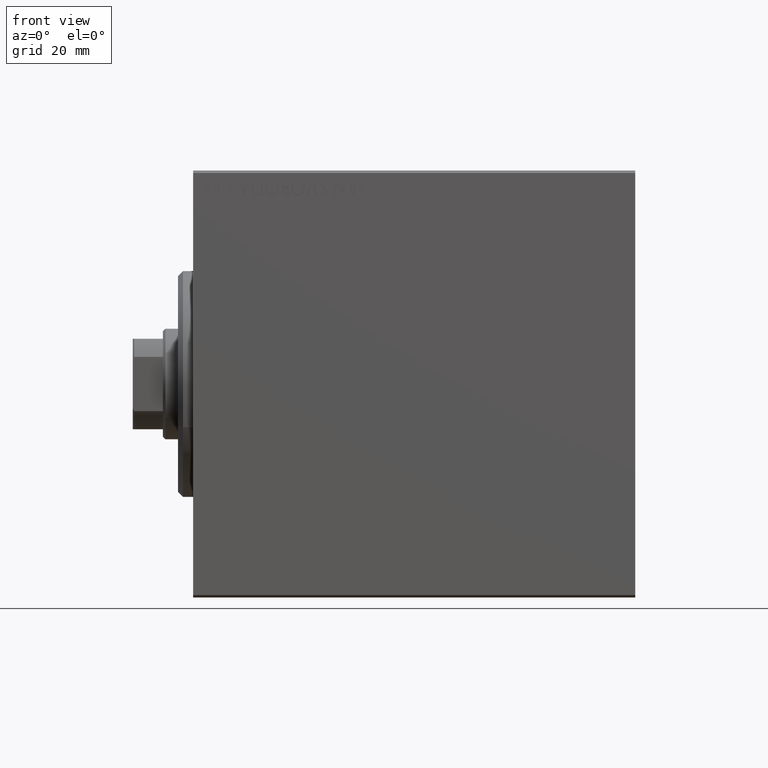
[diagram: clean part render]
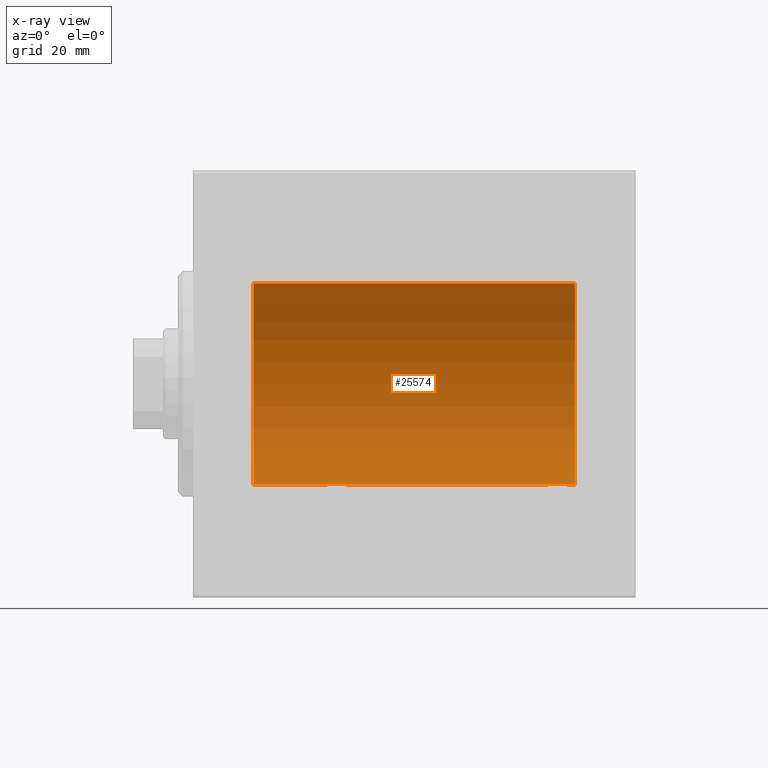
[diagram: x-ray — body ghosted, one internal face saturated and labeled with its STEP entity id]
A machine part, front view, then the same camera in x-ray: the body is ghosted and one INTERNAL B-rep face — a face not visible from any outside direction — is saturated and labeled: STEP entity #25574.
In plain terms, the highlighted cylindrical surface (partial cylindrical patch) has radius 20 mm, axis along (-1, -0, -0).
Its self-contained STEP definition (entity closure, byte-faithful):
#206 = CARTESIAN_POINT ( 'NONE',  ( 30.39789687358864967, 0.6443418861413116039, -19.98998539619404724 ) ) ;
#1570 = ORIENTED_EDGE ( 'NONE', *, *, #30776, .F. ) ;
#1602 = CYLINDRICAL_SURFACE ( 'NONE', #43275, 20.00000000000000000 ) ;
#2184 = EDGE_CURVE ( 'NONE', #36392, #34662, #42881, .T. ) ;
#2364 = CARTESIAN_POINT ( 'NONE',  ( 76.00000000000000000, 0.000000000000000000, 0.000000000000000000 ) ) ;
#2365 = CARTESIAN_POINT ( 'NONE',  ( 70.90940266542450843, 1.219458756546260236, -19.96308513509967497 ) ) ;
#3234 = CARTESIAN_POINT ( 'NONE',  ( 74.09007067689672965, 1.220099331833893741, -19.96304379627740744 ) ) ;
#3323 = CARTESIAN_POINT ( 'NONE',  ( 26.56384771616671969, 0.5179893069484556856, -19.99370013622814568 ) ) ;
#3545 = CARTESIAN_POINT ( 'NONE',  ( 26.99384229619287012, 1.322305185229304625, -19.95645382900617548 ) ) ;
#4394 = CARTESIAN_POINT ( 'NONE',  ( 74.50000000000001421, 2.449293582762867932E-15, -20.00000000000000000 ) ) ;
#4659 = DIRECTION ( 'NONE',  ( -1.000000000000000000, -0.000000000000000000, -0.000000000000000000 ) ) ;
#5163 = CARTESIAN_POINT ( 'NONE',  ( 76.00000000000000000, 0.000000000000000000, 0.000000000000000000 ) ) ;
#5722 = CARTESIAN_POINT ( 'NONE',  ( 70.50000000000000000, -5.133775462521235346E-15, -20.00000000000000000 ) ) ;
#5850 = CARTESIAN_POINT ( 'NONE',  ( 29.01899474186110695, 1.935912154109695082, -19.90610216711450420 ) ) ;
#5937 = CARTESIAN_POINT ( 'NONE',  ( 72.76241417820001800, 1.987020435121066742, -19.90106552791689154 ) ) ;
#6150 = CARTESIAN_POINT ( 'NONE',  ( 70.99384229619288078, 1.322305185229300184, -19.95645382900616482 ) ) ;
#6506 = CARTESIAN_POINT ( 'NONE',  ( 76.00000000000000000, 0.000000000000000000, 20.00000000000000000 ) ) ;
#6663 = CARTESIAN_POINT ( 'NONE',  ( 26.60234886833925927, 0.6450624715427553113, -19.98996196681220638 ) ) ;
#7208 = CARTESIAN_POINT ( 'NONE',  ( 11.99999999999999645, 2.449293598294706513E-15, -20.00000000000000000 ) ) ;
#7649 = CARTESIAN_POINT ( 'NONE',  ( 76.00000000000000000, 2.449293598294706513E-15, -20.00000000000000000 ) ) ;
#7786 = CARTESIAN_POINT ( 'NONE',  ( 11.99999999999999645, 0.000000000000000000, 0.000000000000000000 ) ) ;
#8169 = DIRECTION ( 'NONE',  ( 0.000000000000000000, 0.000000000000000000, 1.000000000000000000 ) ) ;
#8617 = CARTESIAN_POINT ( 'NONE',  ( 76.00000000000000000, 0.000000000000000000, 20.00000000000000000 ) ) ;
#8836 = LINE ( 'NONE', #8617, #29275 ) ;
#9792 = CARTESIAN_POINT ( 'NONE',  ( 30.50000000000000000, 2.449293582768389958E-15, -20.00000000000000000 ) ) ;
#10122 = CARTESIAN_POINT ( 'NONE',  ( 74.50000000000001421, 2.449293582762867932E-15, -20.00000000000000000 ) ) ;
#10190 = VERTEX_POINT ( 'NONE', #36260 ) ;
#10575 = ORIENTED_EDGE ( 'NONE', *, *, #2184, .T. ) ;
#10647 = CARTESIAN_POINT ( 'NONE',  ( 30.50000000000000000, 0.1305706983324451675, -19.99999999999999289 ) ) ;
#10785 = CARTESIAN_POINT ( 'NONE',  ( 73.50297226784952898, 1.735228749583831442, -19.92471474456648650 ) ) ;
#11111 = AXIS2_PLACEMENT_3D ( 'NONE', #7786, #21326, #34889 ) ;
#11335 = EDGE_CURVE ( 'NONE', #40932, #33234, #43097, .T. ) ;
#12510 = CARTESIAN_POINT ( 'NONE',  ( 26.50000000000001066, 0.1322335637814670561, -19.99999999999999645 ) ) ;
#12588 = CARTESIAN_POINT ( 'NONE',  ( 71.97486091545005138, 1.947330458682943188, -19.90522393307485771 ) ) ;
#13237 = CARTESIAN_POINT ( 'NONE',  ( 76.00000000000000000, 2.449293598294706513E-15, -20.00000000000000000 ) ) ;
#13238 = CARTESIAN_POINT ( 'NONE',  ( 70.51298505384674797, 0.2622407139811032684, -19.99868965376115071 ) ) ;
#13381 = VERTEX_POINT ( 'NONE', #4394 ) ;
#14331 = CARTESIAN_POINT ( 'NONE',  ( 74.00738641543991037, 1.321069663197662614, -19.95654117037011233 ) ) ;
#15752 = AXIS2_PLACEMENT_3D ( 'NONE', #2364, #39083, #8169 ) ;
#15809 = DIRECTION ( 'NONE',  ( -1.000000000000000000, -0.000000000000000000, -0.000000000000000000 ) ) ;
#15919 = CARTESIAN_POINT ( 'NONE',  ( 71.27049887769368297, 1.598854313793175885, -19.93684595445884966 ) ) ;
#16053 = CARTESIAN_POINT ( 'NONE',  ( 29.38596189455837049, 1.797847595792762432, -19.91909332229799290 ) ) ;
#16057 = B_SPLINE_CURVE_WITH_KNOTS ( 'NONE', 3,
 ( #5722, #19258, #13238, #35950, #32816, #19050, #32605, #2365, #6150, #15919, #29475, #12588, #26154, #29700, #5937, #19472, #33030, #43294, #10785, #23903, #30568, #14331, #3234, #16998, #31010, #20559, #37250, #34567, #40600, #10122 ),
 .UNSPECIFIED., .F., .F.,
 ( 4, 2, 2, 2, 2, 2, 2, 2, 2, 2, 2, 2, 2, 2, 4 ),
 ( 2.321975990544223827E-18, 0.0003910512220831165522, 0.0007821024441662306108, 0.001173153666249344886, 0.001564204888332458836, 0.002346307332498715360, 0.003128409776664972317, 0.003519460998748080629, 0.003910512220831188074, 0.004301563442914295952, 0.004692614664997402096, 0.005083665887080509975, 0.005474717109163616986, 0.005865768331246724865, 0.006256819553329831876 ),
 .UNSPECIFIED. ) ;
#16647 = CARTESIAN_POINT ( 'NONE',  ( 30.48691292011447374, 0.2631998640366455255, -19.99867931558985745 ) ) ;
#16998 = CARTESIAN_POINT ( 'NONE',  ( 74.23489454601981663, 1.003547732426802730, -19.97510079925436699 ) ) ;
#17087 = CARTESIAN_POINT ( 'NONE',  ( 28.62981181290706090, 2.000047251570884477, -19.89974399317115683 ) ) ;
#17254 = VERTEX_POINT ( 'NONE', #6506 ) ;
#17302 = CARTESIAN_POINT ( 'NONE',  ( 30.43573148867292488, 0.5196544277756701691, -19.99365919015135518 ) ) ;
#17770 = CARTESIAN_POINT ( 'NONE',  ( 76.00000000000000000, 2.449293598294706513E-15, -20.00000000000000000 ) ) ;
#18551 = VECTOR ( 'NONE', #21196, 1000.000000000000000 ) ;
#18687 = VECTOR ( 'NONE', #4659, 1000.000000000000000 ) ;
#18715 = DIRECTION ( 'NONE',  ( 0.000000000000000000, 0.000000000000000000, 1.000000000000000000 ) ) ;
#19050 = CARTESIAN_POINT ( 'NONE',  ( 70.70278656943303019, 0.8872481584516642705, -19.98067755938510359 ) ) ;
#19258 = CARTESIAN_POINT ( 'NONE',  ( 70.50000000000000000, 0.1322335637814657239, -20.00000000000000355 ) ) ;
#19390 = CARTESIAN_POINT ( 'NONE',  ( 29.14371130639851160, 1.898109641280501636, -19.90978941500366872 ) ) ;
#19472 = CARTESIAN_POINT ( 'NONE',  ( 73.01899474186113537, 1.935912154109691752, -19.90610216711450775 ) ) ;
#20122 = ORIENTED_EDGE ( 'NONE', *, *, #11335, .T. ) ;
#20201 = CARTESIAN_POINT ( 'NONE',  ( 29.71960275349742986, 1.590453176650915346, -19.93679350243183634 ) ) ;
#20559 = CARTESIAN_POINT ( 'NONE',  ( 74.39789687358864967, 0.6443418861413126031, -19.98998539619404724 ) ) ;
#20643 = CARTESIAN_POINT ( 'NONE',  ( 30.23489454601983795, 1.003547732426805617, -19.97510079925437054 ) ) ;
#20647 = CARTESIAN_POINT ( 'NONE',  ( 27.27049887769365810, 1.598854313793178994, -19.93684595445884256 ) ) ;
#21196 = DIRECTION ( 'NONE',  ( -1.000000000000000000, -0.000000000000000000, -0.000000000000000000 ) ) ;
#21326 = DIRECTION ( 'NONE',  ( -1.000000000000000000, 0.000000000000000000, 0.000000000000000000 ) ) ;
#21839 = EDGE_CURVE ( 'NONE', #10190, #13381, #16057, .T. ) ;
#22738 = CARTESIAN_POINT ( 'NONE',  ( 26.90940266542447645, 1.219458756546263789, -19.96308513509966787 ) ) ;
#23549 = CARTESIAN_POINT ( 'NONE',  ( 26.51298505384673732, 0.2622407139811037680, -19.99868965376114716 ) ) ;
#23903 = CARTESIAN_POINT ( 'NONE',  ( 73.71960275349746894, 1.590453176650917566, -19.93679350243184345 ) ) ;
#24663 = LINE ( 'NONE', #17770, #18687 ) ;
#24954 = VECTOR ( 'NONE', #41465, 1000.000000000000000 ) ;
#25574 = ADVANCED_FACE ( 'NONE', ( #32707 ), #1602, .F. ) ;
#26073 = CARTESIAN_POINT ( 'NONE',  ( 27.97486091545001230, 1.947330458682949850, -19.90522393307485061 ) ) ;
#26154 = CARTESIAN_POINT ( 'NONE',  ( 72.23819846102561826, 1.999905101582715394, -19.89975827978156531 ) ) ;
#27321 = CARTESIAN_POINT ( 'NONE',  ( 30.29753901127163118, 0.8865903856744307143, -19.98070694681039683 ) ) ;
#27872 = CARTESIAN_POINT ( 'NONE',  ( 76.00000000000000000, 2.449293598294706513E-15, -20.00000000000000000 ) ) ;
#29275 = VECTOR ( 'NONE', #42201, 1000.000000000000000 ) ;
#29475 = CARTESIAN_POINT ( 'NONE',  ( 71.49354240926170689, 1.747830109444730384, -19.92373272380676497 ) ) ;
#29616 = CARTESIAN_POINT ( 'NONE',  ( 26.70278656943304796, 0.8872481584516701547, -19.98067755938510004 ) ) ;
#29700 = CARTESIAN_POINT ( 'NONE',  ( 72.62981181290707866, 2.000047251570880036, -19.89974399317116038 ) ) ;
#29974 = CARTESIAN_POINT ( 'NONE',  ( 11.99999999999999645, 0.000000000000000000, 20.00000000000000000 ) ) ;
#30362 = ORIENTED_EDGE ( 'NONE', *, *, #35608, .F. ) ;
#30441 = CARTESIAN_POINT ( 'NONE',  ( 26.50000000000000355, -6.257798774011376898E-15, -20.00000000000000000 ) ) ;
#30568 = CARTESIAN_POINT ( 'NONE',  ( 73.82060165083835557, 1.507796451871721066, -19.94330239452388298 ) ) ;
#30776 = EDGE_CURVE ( 'NONE', #36392, #33234, #38114, .T. ) ;
#31010 = CARTESIAN_POINT ( 'NONE',  ( 74.29753901127162408, 0.8865903856744312694, -19.98070694681039328 ) ) ;
#31523 = EDGE_CURVE ( 'NONE', #10190, #34662, #38559, .T. ) ;
#32605 = CARTESIAN_POINT ( 'NONE',  ( 70.76423634872104174, 1.002099838626304695, -19.97517568592526871 ) ) ;
#32707 = FACE_OUTER_BOUND ( 'NONE', #37571, .T. ) ;
#32816 = CARTESIAN_POINT ( 'NONE',  ( 70.60234886833930545, 0.6450624715427508704, -19.98996196681220994 ) ) ;
#32948 = CARTESIAN_POINT ( 'NONE',  ( 28.76241417820002155, 1.987020435121070516, -19.90106552791689154 ) ) ;
#33030 = CARTESIAN_POINT ( 'NONE',  ( 73.14371130639852936, 1.898109641280498527, -19.90978941500366517 ) ) ;
#33234 = VERTEX_POINT ( 'NONE', #7208 ) ;
#33768 = CARTESIAN_POINT ( 'NONE',  ( 29.82060165083834846, 1.507796451871724175, -19.94330239452387943 ) ) ;
#33992 = CARTESIAN_POINT ( 'NONE',  ( 26.76423634872104884, 1.002099838626308248, -19.97517568592526160 ) ) ;
#34120 = CARTESIAN_POINT ( 'NONE',  ( 26.50000000000000355, -6.257798774011376898E-15, -20.00000000000000000 ) ) ;
#34326 = ORIENTED_EDGE ( 'NONE', *, *, #37839, .T. ) ;
#34567 = CARTESIAN_POINT ( 'NONE',  ( 74.48691292011450571, 0.2631998640366452480, -19.99867931558986101 ) ) ;
#34662 = VERTEX_POINT ( 'NONE', #9792 ) ;
#34889 = DIRECTION ( 'NONE',  ( 0.000000000000000000, 0.000000000000000000, 1.000000000000000000 ) ) ;
#35022 = CIRCLE ( 'NONE', #15752, 20.00000000000000000 ) ;
#35608 = EDGE_CURVE ( 'NONE', #36223, #13381, #24663, .T. ) ;
#35950 = CARTESIAN_POINT ( 'NONE',  ( 70.56384771616671969, 0.5179893069484544643, -19.99370013622813858 ) ) ;
#36096 = EDGE_CURVE ( 'NONE', #17254, #36223, #35022, .T. ) ;
#36223 = VERTEX_POINT ( 'NONE', #13237 ) ;
#36260 = CARTESIAN_POINT ( 'NONE',  ( 70.50000000000000000, -5.133775462521235346E-15, -20.00000000000000000 ) ) ;
#36299 = CARTESIAN_POINT ( 'NONE',  ( 28.23819846102561826, 1.999905101582720279, -19.89975827978156886 ) ) ;
#36392 = VERTEX_POINT ( 'NONE', #34120 ) ;
#37250 = CARTESIAN_POINT ( 'NONE',  ( 74.43573148867291422, 0.5196544277756690589, -19.99365919015135518 ) ) ;
#37333 = CARTESIAN_POINT ( 'NONE',  ( 30.50000000000000000, 2.449293582768389958E-15, -20.00000000000000000 ) ) ;
#37566 = CARTESIAN_POINT ( 'NONE',  ( 27.49354240926169268, 1.747830109444738156, -19.92373272380676852 ) ) ;
#37571 = EDGE_LOOP ( 'NONE', ( #30362, #37772, #34326, #20122, #1570, #10575, #40604, #42564 ) ) ;
#37772 = ORIENTED_EDGE ( 'NONE', *, *, #36096, .F. ) ;
#37839 = EDGE_CURVE ( 'NONE', #17254, #40932, #8836, .T. ) ;
#38114 = LINE ( 'NONE', #7649, #18551 ) ;
#38559 = LINE ( 'NONE', #27872, #24954 ) ;
#39083 = DIRECTION ( 'NONE',  ( -1.000000000000000000, 0.000000000000000000, 0.000000000000000000 ) ) ;
#40600 = CARTESIAN_POINT ( 'NONE',  ( 74.50000000000000000, 0.1305706983324447512, -20.00000000000000000 ) ) ;
#40604 = ORIENTED_EDGE ( 'NONE', *, *, #31523, .F. ) ;
#40932 = VERTEX_POINT ( 'NONE', #29974 ) ;
#41465 = DIRECTION ( 'NONE',  ( -1.000000000000000000, -0.000000000000000000, -0.000000000000000000 ) ) ;
#42201 = DIRECTION ( 'NONE',  ( -1.000000000000000000, -0.000000000000000000, -0.000000000000000000 ) ) ;
#42564 = ORIENTED_EDGE ( 'NONE', *, *, #21839, .T. ) ;
#42881 = B_SPLINE_CURVE_WITH_KNOTS ( 'NONE', 3,
 ( #30441, #12510, #23549, #3323, #6663, #29616, #33992, #22738, #3545, #20647, #37566, #26073, #36299, #17087, #32948, #5850, #19390, #16053, #43211, #20201, #33768, #44032, #43812, #20643, #27321, #206, #17302, #16647, #10647, #37333 ),
 .UNSPECIFIED., .F., .F.,
 ( 4, 2, 2, 2, 2, 2, 2, 2, 2, 2, 2, 2, 2, 2, 4 ),
 ( 5.963022395843225278E-20, 0.0003910512220831150344, 0.0007821024441662300687, 0.001173153666249344886, 0.001564204888332459921, 0.002346307332498689339, 0.003128409776664918974, 0.003519460998748033791, 0.003910512220831149043, 0.004301563442914263860, 0.004692614664997378678, 0.005083665887080494362, 0.005474717109163609180, 0.005865768331246723997, 0.006256819553329837948 ),
 .UNSPECIFIED. ) ;
#43097 = CIRCLE ( 'NONE', #11111, 20.00000000000000000 ) ;
#43211 = CARTESIAN_POINT ( 'NONE',  ( 29.50297226784953608, 1.735228749583830332, -19.92471474456648650 ) ) ;
#43275 = AXIS2_PLACEMENT_3D ( 'NONE', #5163, #15809, #18715 ) ;
#43294 = CARTESIAN_POINT ( 'NONE',  ( 73.38596189455839180, 1.797847595792761100, -19.91909332229798579 ) ) ;
#43812 = CARTESIAN_POINT ( 'NONE',  ( 30.09007067689674741, 1.220099331833897294, -19.96304379627741099 ) ) ;
#44032 = CARTESIAN_POINT ( 'NONE',  ( 30.00738641543989260, 1.321069663197666388, -19.95654117037011588 ) ) ;